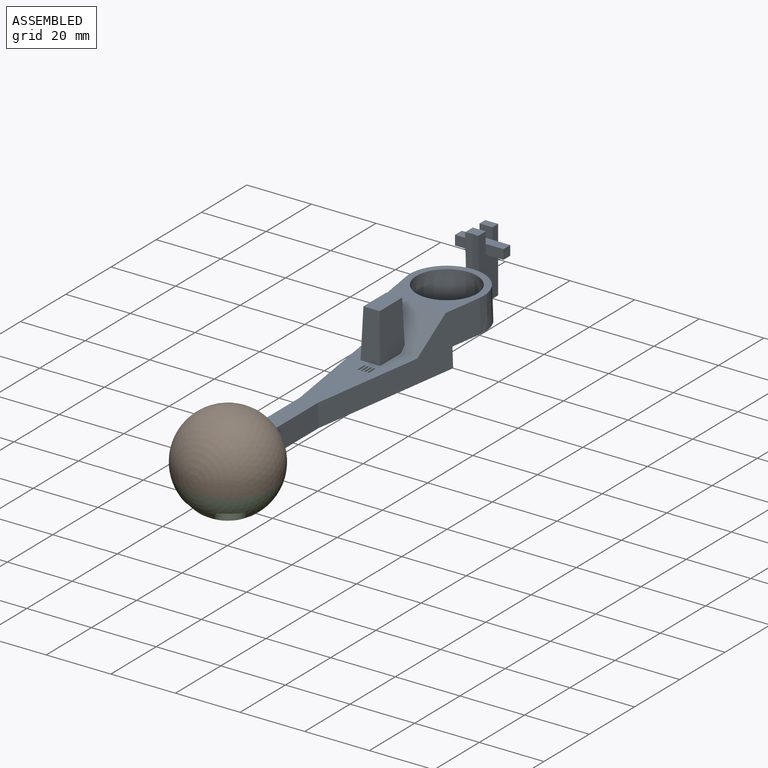
[diagram: assembled view]
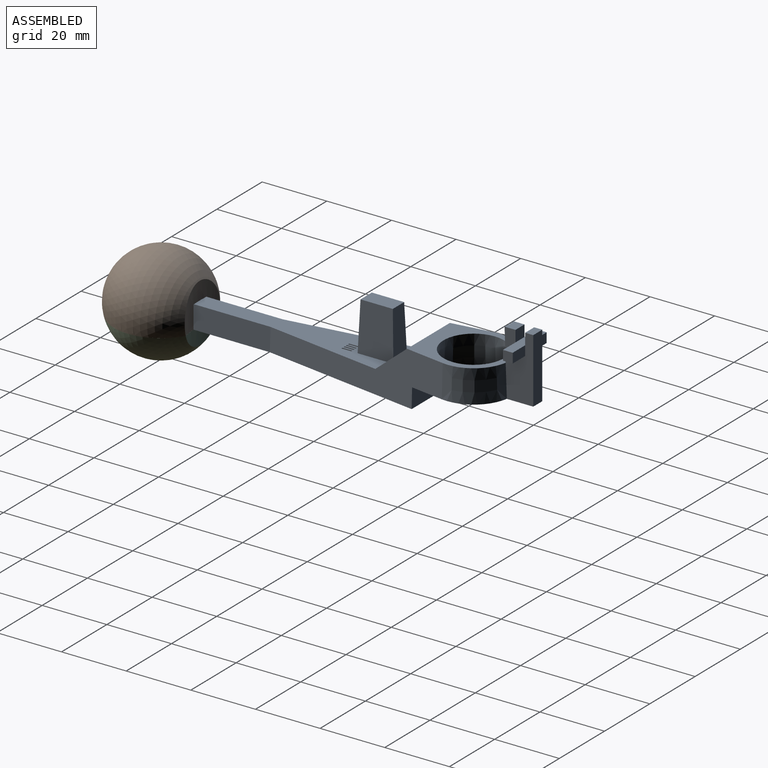
[diagram: assembled view, second angle]
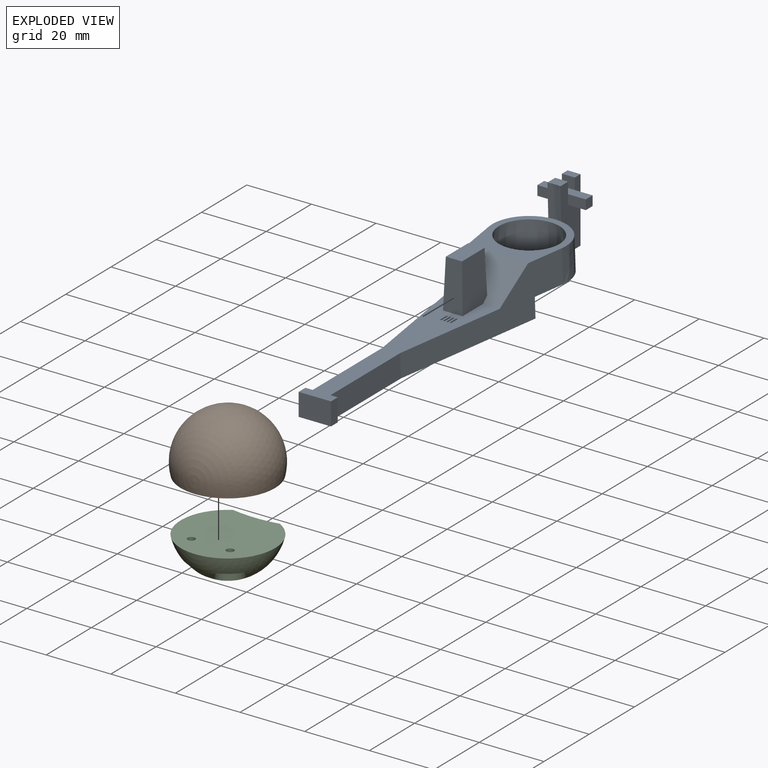
[diagram: exploded view]
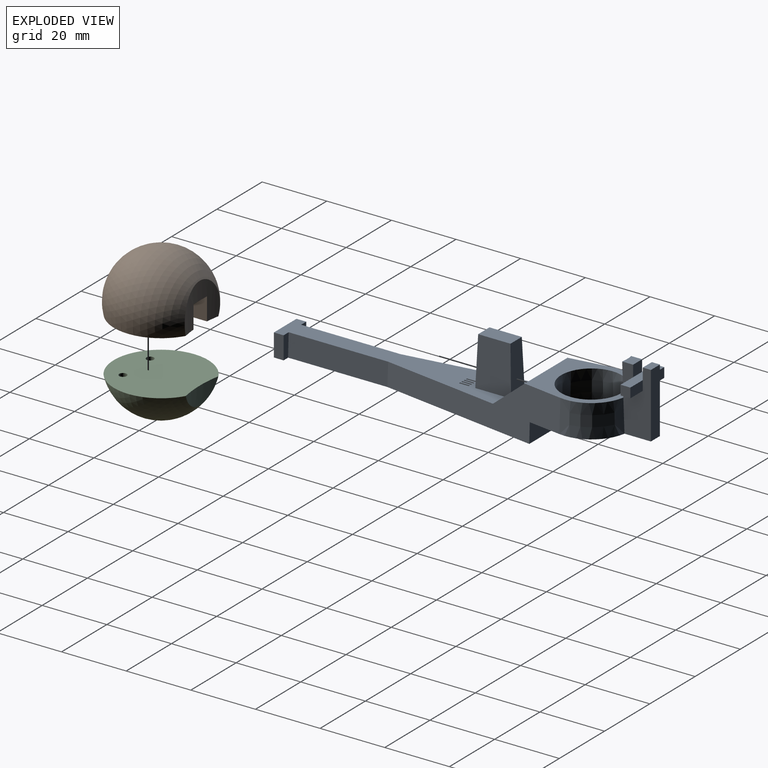
[diagram: exploded view, second angle]
ASSEMBLY  parts=3 mates=2
PART A: 60 faces, bbox 23.6x114.5x26 mm
  f0: plane 4x2.5mm, normal (0,0,1), area 10mm2, adj f1,f22,f23,f34
  f1: plane 20x8.88mm, normal (1,0,0), area 151mm2, adj f0,f2,f12,f20,f21,f23,f24,f25
  f2: cone r=12mm half-angle=2deg, axis (0,0,-1), area 179.7mm2, adj f1,f5,f11,f12
  f3: plane 70x16.36mm, normal (0,0,1), area 534.9mm2, adj f4,f5,f6,f7,f8,f14,f15,f17
  f4: plane 18.94x10.73mm, normal (0,0.64,0.77), area 232.1mm2, adj f3,f5,f8,f11,f15,f16,f17
  f5: plane 59.31x16mm, normal (0.99,0.15,0.03), area 518.3mm2, adj f2,f3,f4,f6,f9,f11,f12,f13
  f6: plane 30.77x7mm, normal (1,0,0.03), area 215.5mm2, adj f3,f5,f9,f58
  f7: plane 30.77x7mm, normal (-1,0,0.03), area 215.5mm2, adj f3,f8,f9,f56
  f8: plane 59.31x16mm, normal (-0.99,0.15,0.03), area 518.3mm2, adj f3,f4,f7,f9,f10,f11,f12,f13
  f9: plane 82.76x20.67mm, normal (0,0,-1), area 868mm2, adj f5,f6,f7,f8,f13,f55,f56,f57
  f10: cone r=12mm half-angle=2deg, axis (0,0,-1), area 179.7mm2, adj f8,f11,f12,f22
  f11: plane 25.47x22.88mm, normal (0,0,1), area 224.8mm2, adj f2,f4,f5,f8,f10,f19,f20
  f12: plane 31.79x23.58mm, normal (0,0,-1), area 218.2mm2, adj f1,f2,f5,f8,f10,f13,f19,f22
  f13: plane 20.67x6mm, normal (0,-1,0), area 122.8mm2, adj f5,f8,f9,f12
  f14: plane 15x6.05mm, normal (0,1,0.03), area 82.9mm2, adj f3,f15,f17,f18
  f15: plane 15x10.99mm, normal (-1,0,0.03), area 156.4mm2, adj f3,f4,f14,f16,f18
  f16: plane 13.39x5.94mm, normal (0,-1,0.03), area 73.2mm2, adj f4,f15,f17,f18
  f17: plane 15x10.99mm, normal (1,0,0.03), area 156.4mm2, adj f3,f4,f14,f16,f18
  f18: plane 10x5mm, normal (0,0,1), area 50mm2, adj f14,f15,f16,f17
  f19: cone r=9.72mm half-angle=2deg, axis (0,0,-1), area 600.1mm2, adj f11,f12
  f20: cone r=12mm half-angle=2deg, axis (0,0,-1), area 40.2mm2, adj f1,f11,f21,f22
  f21: plane 4x3.38mm, normal (0,0,1), area 13mm2, adj f1,f20,f22,f33
  f22: plane 20x8.88mm, normal (-1,0,0), area 151mm2, adj f0,f10,f12,f20,f21,f23,f29,f30
  f23: plane 20x4mm, normal (0,-1,0), area 80mm2, adj f0,f1,f12,f22
  f24: plane 5.5x3mm, normal (0,-1,0), area 16.5mm2, adj f1,f25,f27,f28
  f25: plane 5.5x3mm, normal (0,0,-1), area 16.5mm2, adj f1,f24,f26,f28
  f26: plane 5.5x3mm, normal (0,1,0), area 16.5mm2, adj f1,f25,f27,f28
  f27: plane 15x3mm, normal (0,0,1), area 45mm2, adj f24,f26,f28,f29,f30,f32,f33,f34
  f28: plane 3x3mm, normal (1,0,0), area 9mm2, adj f24,f25,f26,f27
  f29: plane 5.5x3mm, normal (0,-1,0), area 16.5mm2, adj f22,f27,f31,f32
  f30: plane 5.5x3mm, normal (0,1,0), area 16.5mm2, adj f22,f27,f31,f32
  f31: plane 5.5x3mm, normal (0,0,-1), area 16.5mm2, adj f22,f29,f30,f32
  f32: plane 3x3mm, normal (-1,0,0), area 9mm2, adj f27,f29,f30,f31
  f33: plane 4x3.5mm, normal (0,-1,0), area 14mm2, adj f1,f21,f22,f27
  f34: plane 4x3.5mm, normal (0,1,0), area 14mm2, adj f0,f1,f22,f27
  f35: plane 3x0.5mm, normal (1,0,0), area 1.5mm2, adj f3,f36,f38,f39
  f36: plane 0.5x0.5mm, normal (0,1,0), area 0.3mm2, adj f3,f35,f37,f39
  f37: plane 3x0.5mm, normal (-1,0,0), area 1.5mm2, adj f3,f36,f38,f39
  f38: plane 0.5x0.5mm, normal (0,-1,0), area 0.3mm2, adj f3,f35,f37,f39
  f39: plane 3x0.5mm, normal (0,0,1), area 1.5mm2, adj f35,f36,f37,f38
  f40: plane 3x0.5mm, normal (1,0,0), area 1.5mm2, adj f3,f41,f43,f44
  f41: plane 0.5x0.5mm, normal (0,1,0), area 0.3mm2, adj f3,f40,f42,f44
  f42: plane 3x0.5mm, normal (-1,0,0), area 1.5mm2, adj f3,f41,f43,f44
  f43: plane 0.5x0.5mm, normal (0,-1,0), area 0.3mm2, adj f3,f40,f42,f44
  f44: plane 3x0.5mm, normal (0,0,1), area 1.5mm2, adj f40,f41,f42,f43
  f45: plane 3x0.5mm, normal (1,0,0), area 1.5mm2, adj f3,f46,f48,f49
  f46: plane 0.5x0.5mm, normal (0,1,0), area 0.2mm2, adj f3,f45,f47,f49
  f47: plane 3x0.5mm, normal (-1,0,0), area 1.5mm2, adj f3,f46,f48,f49
  f48: plane 0.5x0.5mm, normal (0,-1,0), area 0.2mm2, adj f3,f45,f47,f49
  f49: plane 3x0.5mm, normal (0,0,1), area 1.5mm2, adj f45,f46,f47,f48
  f50: plane 3x0.5mm, normal (1,0,0), area 1.5mm2, adj f3,f51,f53,f54
  f51: plane 0.5x0.5mm, normal (0,1,0), area 0.3mm2, adj f3,f50,f52,f54
  f52: plane 3x0.5mm, normal (-1,0,0), area 1.5mm2, adj f3,f51,f53,f54
  f53: plane 0.5x0.5mm, normal (0,-1,0), area 0.3mm2, adj f3,f50,f52,f54
  f54: plane 3x0.5mm, normal (0,0,1), area 1.5mm2, adj f50,f51,f52,f53
  f55: plane 10x7mm, normal (0,1,0), area 70mm2, adj f3,f9,f57,f59
  f56: plane 7x2.24mm, normal (0,-1,0), area 14.9mm2, adj f3,f7,f9,f57
  f57: plane 7x3mm, normal (-1,0,0), area 21mm2, adj f3,f9,f55,f56
  f58: plane 7x2.24mm, normal (0,-1,0), area 14.9mm2, adj f3,f6,f9,f59
  f59: plane 7x3mm, normal (1,0,0), area 21mm2, adj f3,f9,f55,f58
PART B: 11 faces, bbox 30x27.8x30 mm
  f0: plane 29.17x27.26mm, normal (0,0,-1), area 565mm2, adj f1,f2,f3,f5,f6,f7,f8,f9
  f1: cylinder r=39mm len=15.71mm, axis (0,0,1), area 123.1mm2, adj f0,f2,f3,f4,f5
  f2: sphere r=15mm, area 1576.3mm2, adj f0,f1
  f3: plane 7.12x7mm, normal (-1,0,0), area 49.8mm2, adj f0,f1,f4,f7
  f4: plane 12x10.12mm, normal (0,0,-1), area 78.2mm2, adj f1,f3,f5,f6,f7,f8,f9,f10
  f5: plane 7.12x7mm, normal (1,0,0), area 49.8mm2, adj f0,f1,f4,f9
  f6: plane 12x7mm, normal (0,1,0), area 84mm2, adj f0,f4,f8,f10
  f7: plane 7x3mm, normal (0,-1,0), area 21mm2, adj f0,f3,f4,f8
  f8: plane 7x3mm, normal (-1,0,0), area 21mm2, adj f0,f4,f6,f7
  f9: plane 7x3mm, normal (0,-1,0), area 21mm2, adj f0,f4,f5,f10
  f10: plane 7x3mm, normal (1,0,0), area 21mm2, adj f0,f4,f6,f9
PART C: 9 faces, bbox 29.2x27.4x14.3 mm
  f0: sphere r=15mm, area 910.1mm2, adj f1,f2,f5,f6,f7,f8
  f1: cylinder r=39mm len=14.44mm, axis (0,0,1), area 57.7mm2, adj f0,f2
  f2: plane 29.17x27.26mm, normal (0,0,1), area 634.9mm2, adj f0,f1,f3,f4
  f3: cylinder r=1.15mm len=5.5mm, axis (0,0,-1), area 39.7mm2, adj f2,f6
  f4: cylinder r=1.15mm len=5.5mm, axis (0,0,-1), area 39.7mm2, adj f2,f8
  f5: cylinder r=4mm len=7.91mm, axis (0,0,-1), area 51mm2, adj f0,f6
  f6: plane 7.91x7.62mm, normal (0,0,-1), area 37.4mm2, adj f0,f3,f5
  f7: cylinder r=4mm len=7.91mm, axis (0,0,-1), area 51mm2, adj f0,f8
  f8: plane 7.91x7.62mm, normal (0,0,-1), area 37.4mm2, adj f0,f4,f7
PLACE A rot(axis=(0,0,1),180deg) t=(12.93,98.59,-4.12)mm
PLACE B t=(12.93,16.83,-0.62)mm
PLACE C t=(12.93,16.83,-0.62)mm
MATE fastened A.f55 <-> B.f6  axis (0,-1,0) through (12.93,3.83,2.88)mm
MATE fastened B.f0 <-> C.f2  axis (0,0,-1) through (12.93,1.83,-4.12)mm
